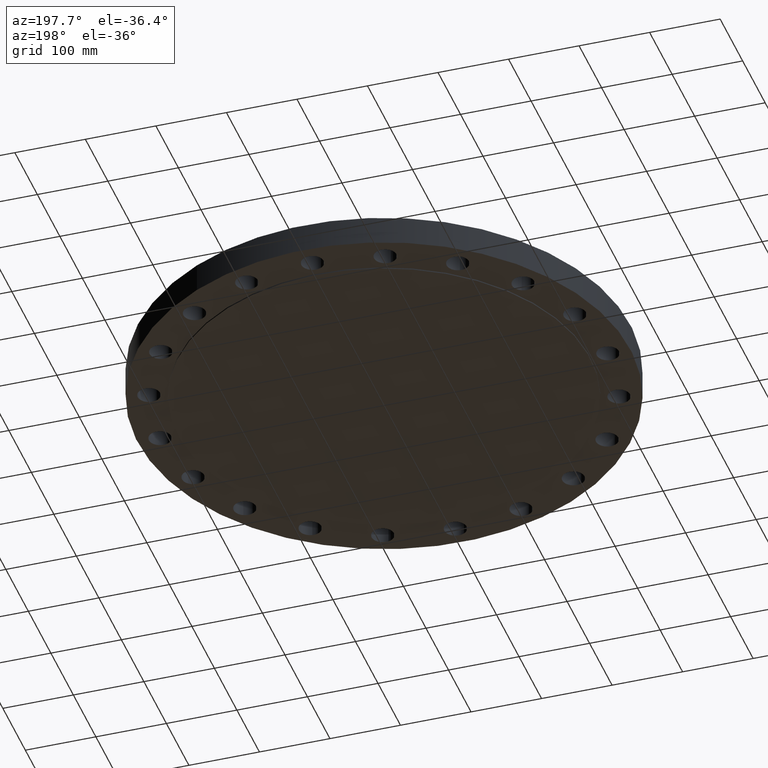
[diagram: clean part render]
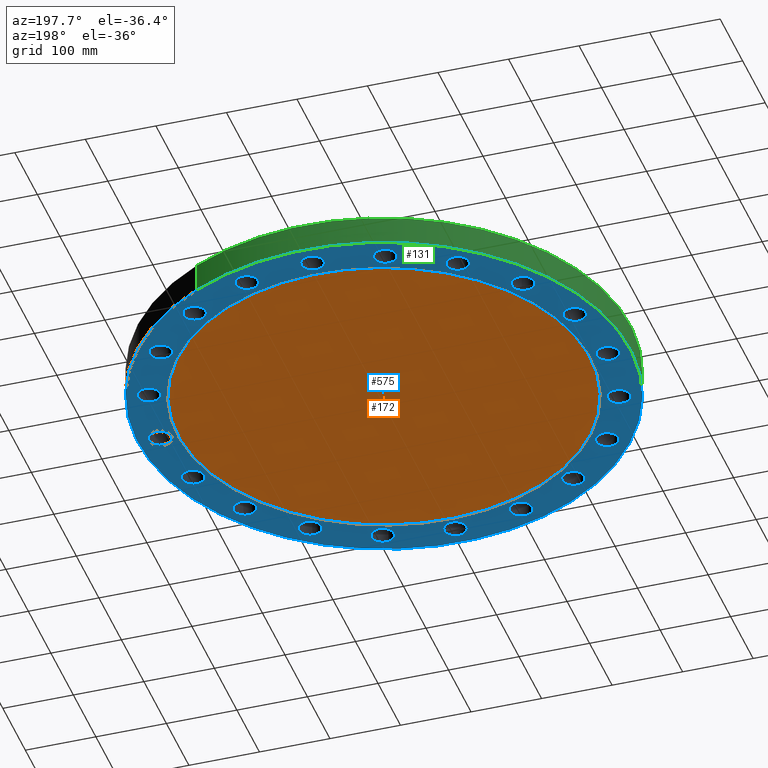
[diagram: same view with three faces highlighted in distinct colors, each labeled with its STEP entity id]
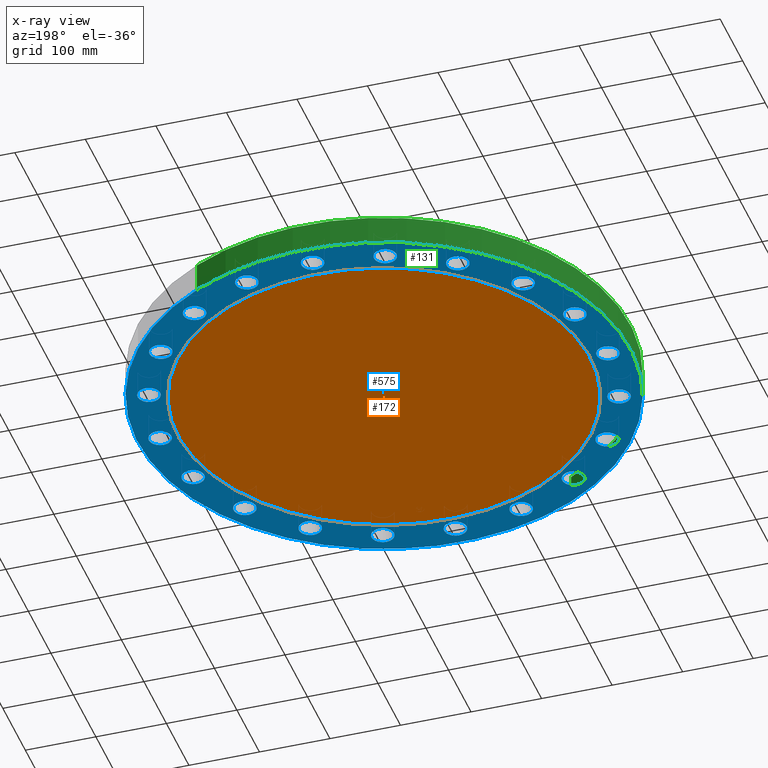
[diagram: x-ray of the same camera — body ghosted, the three highlighted faces saturated]
A machine part, auxiliary view with three faces highlighted in distinct colors.
The next image is the same camera in x-ray (body ghosted, the three faces saturated) — at least one of them is partly hidden behind the body in this view.
Their STEP definitions:

[orange] entity #172 — the highlighted planar face has unit normal (0, 0, -1).
#152=AXIS2_PLACEMENT_3D('Plane Axis2P3D',#149,#150,#151) ;
#156=AXIS2_PLACEMENT_3D('Circle Axis2P3D',#154,#155,$) ;
#165=AXIS2_PLACEMENT_3D('Circle Axis2P3D',#163,#164,$) ;
#149=CARTESIAN_POINT('Axis2P3D Location',(0.,0.,-0.0625000000003)) ;
#154=CARTESIAN_POINT('Axis2P3D Location',(0.,0.,-0.0625000000003)) ;
#158=CARTESIAN_POINT('Vertex',(5.51339369397,10.0921994618,-0.0625000000002)) ;
#160=CARTESIAN_POINT('Vertex',(-5.51339369397,-10.0921994618,-0.0625000000002)) ;
#163=CARTESIAN_POINT('Axis2P3D Location',(0.,0.,-0.0625000000003)) ;
#150=DIRECTION('Axis2P3D Direction',(0.,0.,-0.0393700787402)) ;
#151=DIRECTION('Axis2P3D XDirection',(0.0393700787402,0.,0.)) ;
#155=DIRECTION('Axis2P3D Direction',(0.,0.,-0.0393700787402)) ;
#164=DIRECTION('Axis2P3D Direction',(0.,0.,-0.0393700787402)) ;
#169=ORIENTED_EDGE('',*,*,#162,.T.) ;
#170=ORIENTED_EDGE('',*,*,#167,.T.) ;
#172=ADVANCED_FACE('PartBody',(#171),#153,.T.) ;
#157=CIRCLE('generated circle',#156,11.5) ;
#166=CIRCLE('generated circle',#165,11.5) ;
#162=EDGE_CURVE('',#159,#161,#157,.T.) ;
#167=EDGE_CURVE('',#161,#159,#166,.T.) ;
#168=EDGE_LOOP('',(#169,#170)) ;
#171=FACE_OUTER_BOUND('',#168,.T.) ;
#153=PLANE('',#152) ;
#159=VERTEX_POINT('',#158) ;
#161=VERTEX_POINT('',#160) ;

[blue] entity #575 — the highlighted planar face has unit normal (0, 0, -1).
#51=AXIS2_PLACEMENT_3D('Circle Axis2P3D',#49,#50,$) ;
#77=AXIS2_PLACEMENT_3D('Circle Axis2P3D',#75,#76,$) ;
#99=AXIS2_PLACEMENT_3D('Circle Axis2P3D',#97,#98,$) ;
#134=AXIS2_PLACEMENT_3D('Circle Axis2P3D',#132,#133,$) ;
#187=AXIS2_PLACEMENT_3D('Circle Axis2P3D',#185,#186,$) ;
#206=AXIS2_PLACEMENT_3D('Circle Axis2P3D',#204,#205,$) ;
#219=AXIS2_PLACEMENT_3D('Plane Axis2P3D',#216,#217,#218) ;
#235=AXIS2_PLACEMENT_3D('Circle Axis2P3D',#233,#234,$) ;
#244=AXIS2_PLACEMENT_3D('Circle Axis2P3D',#242,#243,$) ;
#253=AXIS2_PLACEMENT_3D('Circle Axis2P3D',#251,#252,$) ;
#262=AXIS2_PLACEMENT_3D('Circle Axis2P3D',#260,#261,$) ;
#271=AXIS2_PLACEMENT_3D('Circle Axis2P3D',#269,#270,$) ;
#280=AXIS2_PLACEMENT_3D('Circle Axis2P3D',#278,#279,$) ;
#289=AXIS2_PLACEMENT_3D('Circle Axis2P3D',#287,#288,$) ;
#298=AXIS2_PLACEMENT_3D('Circle Axis2P3D',#296,#297,$) ;
#307=AXIS2_PLACEMENT_3D('Circle Axis2P3D',#305,#306,$) ;
#316=AXIS2_PLACEMENT_3D('Circle Axis2P3D',#314,#315,$) ;
#325=AXIS2_PLACEMENT_3D('Circle Axis2P3D',#323,#324,$) ;
#334=AXIS2_PLACEMENT_3D('Circle Axis2P3D',#332,#333,$) ;
#343=AXIS2_PLACEMENT_3D('Circle Axis2P3D',#341,#342,$) ;
#352=AXIS2_PLACEMENT_3D('Circle Axis2P3D',#350,#351,$) ;
#361=AXIS2_PLACEMENT_3D('Circle Axis2P3D',#359,#360,$) ;
#370=AXIS2_PLACEMENT_3D('Circle Axis2P3D',#368,#369,$) ;
#379=AXIS2_PLACEMENT_3D('Circle Axis2P3D',#377,#378,$) ;
#388=AXIS2_PLACEMENT_3D('Circle Axis2P3D',#386,#387,$) ;
#397=AXIS2_PLACEMENT_3D('Circle Axis2P3D',#395,#396,$) ;
#406=AXIS2_PLACEMENT_3D('Circle Axis2P3D',#404,#405,$) ;
#415=AXIS2_PLACEMENT_3D('Circle Axis2P3D',#413,#414,$) ;
#424=AXIS2_PLACEMENT_3D('Circle Axis2P3D',#422,#423,$) ;
#433=AXIS2_PLACEMENT_3D('Circle Axis2P3D',#431,#432,$) ;
#442=AXIS2_PLACEMENT_3D('Circle Axis2P3D',#440,#441,$) ;
#451=AXIS2_PLACEMENT_3D('Circle Axis2P3D',#449,#450,$) ;
#460=AXIS2_PLACEMENT_3D('Circle Axis2P3D',#458,#459,$) ;
#469=AXIS2_PLACEMENT_3D('Circle Axis2P3D',#467,#468,$) ;
#478=AXIS2_PLACEMENT_3D('Circle Axis2P3D',#476,#477,$) ;
#487=AXIS2_PLACEMENT_3D('Circle Axis2P3D',#485,#486,$) ;
#496=AXIS2_PLACEMENT_3D('Circle Axis2P3D',#494,#495,$) ;
#505=AXIS2_PLACEMENT_3D('Circle Axis2P3D',#503,#504,$) ;
#514=AXIS2_PLACEMENT_3D('Circle Axis2P3D',#512,#513,$) ;
#523=AXIS2_PLACEMENT_3D('Circle Axis2P3D',#521,#522,$) ;
#532=AXIS2_PLACEMENT_3D('Circle Axis2P3D',#530,#531,$) ;
#541=AXIS2_PLACEMENT_3D('Circle Axis2P3D',#539,#540,$) ;
#550=AXIS2_PLACEMENT_3D('Circle Axis2P3D',#548,#549,$) ;
#559=AXIS2_PLACEMENT_3D('Circle Axis2P3D',#557,#558,$) ;
#568=AXIS2_PLACEMENT_3D('Circle Axis2P3D',#566,#567,$) ;
#44=CARTESIAN_POINT('Vertex',(11.9515108989,0.299640961629,0.)) ;
#49=CARTESIAN_POINT('Axis2P3D Location',(12.5000000001,0.,0.)) ;
#53=CARTESIAN_POINT('Vertex',(13.0484891012,-0.299640961629,0.)) ;
#75=CARTESIAN_POINT('Axis2P3D Location',(12.5000000001,0.,0.)) ;
#97=CARTESIAN_POINT('Axis2P3D Location',(0.,0.,1.67844740731E-015)) ;
#101=CARTESIAN_POINT('Vertex',(-6.59210115583,-12.066760226,1.67844740731E-015)) ;
#103=CARTESIAN_POINT('Vertex',(6.59210115583,12.066760226,1.67844740731E-015)) ;
#132=CARTESIAN_POINT('Axis2P3D Location',(0.,0.,1.67844740731E-015)) ;
#182=CARTESIAN_POINT('Vertex',(-5.51339369397,-10.0921994618,1.53857679003E-015)) ;
#185=CARTESIAN_POINT('Axis2P3D Location',(0.,0.,1.53857679003E-015)) ;
#189=CARTESIAN_POINT('Vertex',(5.51339369397,10.0921994618,1.53857679003E-015)) ;
#204=CARTESIAN_POINT('Axis2P3D Location',(0.,0.,1.53857679003E-015)) ;
#216=CARTESIAN_POINT('Axis2P3D Location',(0.,11.5,0.)) ;
#233=CARTESIAN_POINT('Axis2P3D Location',(11.8882064537,-3.8627124297,0.)) ;
#237=CARTESIAN_POINT('Vertex',(11.4591564693,-3.4082444871,0.)) ;
#239=CARTESIAN_POINT('Vertex',(12.3172564382,-4.3171803723,0.)) ;
#242=CARTESIAN_POINT('Axis2P3D Location',(11.8882064537,-3.8627124297,0.)) ;
#251=CARTESIAN_POINT('Axis2P3D Location',(10.1127124297,-7.34731565369,0.)) ;
#255=CARTESIAN_POINT('Vertex',(9.84509996387,-6.7825072188,0.)) ;
#257=CARTESIAN_POINT('Vertex',(10.3803248956,-7.91212408857,-1.67844740731E-015)) ;
#260=CARTESIAN_POINT('Axis2P3D Location',(10.1127124297,-7.34731565369,0.)) ;
#269=CARTESIAN_POINT('Axis2P3D Location',(7.34731565369,-10.1127124297,0.)) ;
#273=CARTESIAN_POINT('Vertex',(7.26733647913,-9.49285088741,0.)) ;
#275=CARTESIAN_POINT('Vertex',(7.42729482824,-10.732573972,0.)) ;
#278=CARTESIAN_POINT('Axis2P3D Location',(7.34731565369,-10.1127124297,0.)) ;
#287=CARTESIAN_POINT('Axis2P3D Location',(3.8627124297,-11.8882064537,0.)) ;
#291=CARTESIAN_POINT('Vertex',(3.97819546531,-11.2739681706,0.)) ;
#293=CARTESIAN_POINT('Vertex',(3.74722939409,-12.5024447369,0.)) ;
#296=CARTESIAN_POINT('Axis2P3D Location',(3.8627124297,-11.8882064537,0.)) ;
#305=CARTESIAN_POINT('Axis2P3D Location',(1.46864148139E-015,-12.5000000001,0.)) ;
#309=CARTESIAN_POINT('Vertex',(0.299640961629,-11.9515108989,0.)) ;
#311=CARTESIAN_POINT('Vertex',(-0.299640961629,-13.0484891012,0.)) ;
#314=CARTESIAN_POINT('Axis2P3D Location',(1.39870617276E-015,-12.5000000001,0.)) ;
#323=CARTESIAN_POINT('Axis2P3D Location',(-3.8627124297,-11.8882064537,0.)) ;
#327=CARTESIAN_POINT('Vertex',(-3.4082444871,-11.4591564693,0.)) ;
#329=CARTESIAN_POINT('Vertex',(-4.3171803723,-12.3172564382,0.)) ;
#332=CARTESIAN_POINT('Axis2P3D Location',(-3.8627124297,-11.8882064537,0.)) ;
#341=CARTESIAN_POINT('Axis2P3D Location',(-7.34731565369,-10.1127124297,0.)) ;
#345=CARTESIAN_POINT('Vertex',(-6.7825072188,-9.84509996387,0.)) ;
#347=CARTESIAN_POINT('Vertex',(-7.91212408857,-10.3803248956,0.)) ;
#350=CARTESIAN_POINT('Axis2P3D Location',(-7.34731565369,-10.1127124297,0.)) ;
#359=CARTESIAN_POINT('Axis2P3D Location',(-10.1127124297,-7.34731565369,0.)) ;
#363=CARTESIAN_POINT('Vertex',(-9.49285088741,-7.26733647913,0.)) ;
#365=CARTESIAN_POINT('Vertex',(-10.732573972,-7.42729482824,0.)) ;
#368=CARTESIAN_POINT('Axis2P3D Location',(-10.1127124297,-7.34731565369,0.)) ;
#377=CARTESIAN_POINT('Axis2P3D Location',(-11.8882064537,-3.8627124297,0.)) ;
#381=CARTESIAN_POINT('Vertex',(-11.2739681706,-3.97819546531,0.)) ;
#383=CARTESIAN_POINT('Vertex',(-12.5024447369,-3.74722939409,0.)) ;
#386=CARTESIAN_POINT('Axis2P3D Location',(-11.8882064537,-3.8627124297,0.)) ;
#395=CARTESIAN_POINT('Axis2P3D Location',(-12.5000000001,-6.71378962923E-015,0.)) ;
#399=CARTESIAN_POINT('Vertex',(-11.9515108989,-0.299640961629,0.)) ;
#401=CARTESIAN_POINT('Vertex',(-13.0484891012,0.299640961629,0.)) ;
#404=CARTESIAN_POINT('Axis2P3D Location',(-12.5000000001,-6.71378962923E-015,0.)) ;
#413=CARTESIAN_POINT('Axis2P3D Location',(-11.8882064537,3.8627124297,0.)) ;
#417=CARTESIAN_POINT('Vertex',(-11.4591564693,3.4082444871,0.)) ;
#419=CARTESIAN_POINT('Vertex',(-12.3172564382,4.3171803723,0.)) ;
#422=CARTESIAN_POINT('Axis2P3D Location',(-11.8882064537,3.8627124297,0.)) ;
#431=CARTESIAN_POINT('Axis2P3D Location',(-10.1127124297,7.34731565369,0.)) ;
#435=CARTESIAN_POINT('Vertex',(-9.84509996387,6.7825072188,0.)) ;
#437=CARTESIAN_POINT('Vertex',(-10.3803248956,7.91212408857,-1.67844740731E-015)) ;
#440=CARTESIAN_POINT('Axis2P3D Location',(-10.1127124297,7.34731565369,0.)) ;
#449=CARTESIAN_POINT('Axis2P3D Location',(-7.34731565369,10.1127124297,0.)) ;
#453=CARTESIAN_POINT('Vertex',(-7.26733647913,9.49285088741,0.)) ;
#455=CARTESIAN_POINT('Vertex',(-7.42729482824,10.732573972,0.)) ;
#458=CARTESIAN_POINT('Axis2P3D Location',(-7.34731565369,10.1127124297,0.)) ;
#467=CARTESIAN_POINT('Axis2P3D Location',(-3.8627124297,11.8882064537,0.)) ;
#471=CARTESIAN_POINT('Vertex',(-3.97819546531,11.2739681706,0.)) ;
#473=CARTESIAN_POINT('Vertex',(-3.74722939409,12.5024447369,-1.67844740731E-015)) ;
#476=CARTESIAN_POINT('Axis2P3D Location',(-3.8627124297,11.8882064537,0.)) ;
#485=CARTESIAN_POINT('Axis2P3D Location',(-1.43367382708E-014,12.5000000001,0.)) ;
#489=CARTESIAN_POINT('Vertex',(-0.299640961629,11.9515108989,0.)) ;
#491=CARTESIAN_POINT('Vertex',(0.299640961629,13.0484891012,0.)) ;
#494=CARTESIAN_POINT('Axis2P3D Location',(-1.25184202462E-014,12.5000000001,0.)) ;
#503=CARTESIAN_POINT('Axis2P3D Location',(3.8627124297,11.8882064537,0.)) ;
#507=CARTESIAN_POINT('Vertex',(3.4082444871,11.4591564693,0.)) ;
#509=CARTESIAN_POINT('Vertex',(4.3171803723,12.3172564382,-1.67844740731E-015)) ;
#512=CARTESIAN_POINT('Axis2P3D Location',(3.8627124297,11.8882064537,0.)) ;
#521=CARTESIAN_POINT('Axis2P3D Location',(7.34731565369,10.1127124297,0.)) ;
#525=CARTESIAN_POINT('Vertex',(6.7825072188,9.84509996387,0.)) ;
#527=CARTESIAN_POINT('Vertex',(7.91212408857,10.3803248956,0.)) ;
#530=CARTESIAN_POINT('Axis2P3D Location',(7.34731565369,10.1127124297,0.)) ;
#539=CARTESIAN_POINT('Axis2P3D Location',(10.1127124297,7.34731565369,0.)) ;
#543=CARTESIAN_POINT('Vertex',(9.49285088741,7.26733647913,0.)) ;
#545=CARTESIAN_POINT('Vertex',(10.732573972,7.42729482824,0.)) ;
#548=CARTESIAN_POINT('Axis2P3D Location',(10.1127124297,7.34731565369,0.)) ;
#557=CARTESIAN_POINT('Axis2P3D Location',(11.8882064537,3.8627124297,0.)) ;
#561=CARTESIAN_POINT('Vertex',(11.2739681706,3.97819546531,0.)) ;
#563=CARTESIAN_POINT('Vertex',(12.5024447369,3.74722939409,-1.67844740731E-015)) ;
#566=CARTESIAN_POINT('Axis2P3D Location',(11.8882064537,3.8627124297,0.)) ;
#50=DIRECTION('Axis2P3D Direction',(0.,-0.,-0.0393700787402)) ;
#76=DIRECTION('Axis2P3D Direction',(0.,-0.,-0.0393700787402)) ;
#98=DIRECTION('Axis2P3D Direction',(0.,0.,-0.0393700787402)) ;
#133=DIRECTION('Axis2P3D Direction',(0.,0.,-0.0393700787402)) ;
#186=DIRECTION('Axis2P3D Direction',(0.,0.,-0.0393700787402)) ;
#205=DIRECTION('Axis2P3D Direction',(0.,0.,-0.0393700787402)) ;
#217=DIRECTION('Axis2P3D Direction',(0.,0.,-0.0393700787402)) ;
#218=DIRECTION('Axis2P3D XDirection',(0.0393700787402,0.,0.)) ;
#234=DIRECTION('Axis2P3D Direction',(0.,0.,-0.0393700787402)) ;
#243=DIRECTION('Axis2P3D Direction',(0.,0.,-0.0393700787402)) ;
#252=DIRECTION('Axis2P3D Direction',(0.,0.,-0.0393700787402)) ;
#261=DIRECTION('Axis2P3D Direction',(0.,0.,-0.0393700787402)) ;
#270=DIRECTION('Axis2P3D Direction',(0.,0.,-0.0393700787402)) ;
#279=DIRECTION('Axis2P3D Direction',(0.,0.,-0.0393700787402)) ;
#288=DIRECTION('Axis2P3D Direction',(0.,0.,-0.0393700787402)) ;
#297=DIRECTION('Axis2P3D Direction',(0.,0.,-0.0393700787402)) ;
#306=DIRECTION('Axis2P3D Direction',(0.,0.,-0.0393700787402)) ;
#315=DIRECTION('Axis2P3D Direction',(0.,0.,-0.0393700787402)) ;
#324=DIRECTION('Axis2P3D Direction',(0.,0.,-0.0393700787402)) ;
#333=DIRECTION('Axis2P3D Direction',(0.,0.,-0.0393700787402)) ;
#342=DIRECTION('Axis2P3D Direction',(0.,0.,-0.0393700787402)) ;
#351=DIRECTION('Axis2P3D Direction',(0.,0.,-0.0393700787402)) ;
#360=DIRECTION('Axis2P3D Direction',(0.,0.,-0.0393700787402)) ;
#369=DIRECTION('Axis2P3D Direction',(0.,0.,-0.0393700787402)) ;
#378=DIRECTION('Axis2P3D Direction',(0.,0.,-0.0393700787402)) ;
#387=DIRECTION('Axis2P3D Direction',(0.,0.,-0.0393700787402)) ;
#396=DIRECTION('Axis2P3D Direction',(0.,0.,-0.0393700787402)) ;
#405=DIRECTION('Axis2P3D Direction',(0.,0.,-0.0393700787402)) ;
#414=DIRECTION('Axis2P3D Direction',(0.,0.,-0.0393700787402)) ;
#423=DIRECTION('Axis2P3D Direction',(0.,0.,-0.0393700787402)) ;
#432=DIRECTION('Axis2P3D Direction',(0.,0.,-0.0393700787402)) ;
#441=DIRECTION('Axis2P3D Direction',(0.,0.,-0.0393700787402)) ;
#450=DIRECTION('Axis2P3D Direction',(0.,0.,-0.0393700787402)) ;
#459=DIRECTION('Axis2P3D Direction',(0.,0.,-0.0393700787402)) ;
#468=DIRECTION('Axis2P3D Direction',(0.,0.,-0.0393700787402)) ;
#477=DIRECTION('Axis2P3D Direction',(0.,0.,-0.0393700787402)) ;
#486=DIRECTION('Axis2P3D Direction',(0.,0.,-0.0393700787402)) ;
#495=DIRECTION('Axis2P3D Direction',(0.,0.,-0.0393700787402)) ;
#504=DIRECTION('Axis2P3D Direction',(0.,0.,-0.0393700787402)) ;
#513=DIRECTION('Axis2P3D Direction',(0.,0.,-0.0393700787402)) ;
#522=DIRECTION('Axis2P3D Direction',(0.,0.,-0.0393700787402)) ;
#531=DIRECTION('Axis2P3D Direction',(0.,0.,-0.0393700787402)) ;
#540=DIRECTION('Axis2P3D Direction',(0.,0.,-0.0393700787402)) ;
#549=DIRECTION('Axis2P3D Direction',(0.,0.,-0.0393700787402)) ;
#558=DIRECTION('Axis2P3D Direction',(0.,0.,-0.0393700787402)) ;
#567=DIRECTION('Axis2P3D Direction',(0.,0.,-0.0393700787402)) ;
#222=ORIENTED_EDGE('',*,*,#105,.T.) ;
#223=ORIENTED_EDGE('',*,*,#136,.T.) ;
#226=ORIENTED_EDGE('',*,*,#79,.F.) ;
#227=ORIENTED_EDGE('',*,*,#55,.F.) ;
#230=ORIENTED_EDGE('',*,*,#208,.F.) ;
#231=ORIENTED_EDGE('',*,*,#191,.F.) ;
#248=ORIENTED_EDGE('',*,*,#241,.F.) ;
#249=ORIENTED_EDGE('',*,*,#246,.F.) ;
#266=ORIENTED_EDGE('',*,*,#259,.F.) ;
#267=ORIENTED_EDGE('',*,*,#264,.F.) ;
#284=ORIENTED_EDGE('',*,*,#277,.F.) ;
#285=ORIENTED_EDGE('',*,*,#282,.F.) ;
#302=ORIENTED_EDGE('',*,*,#295,.F.) ;
#303=ORIENTED_EDGE('',*,*,#300,.F.) ;
#320=ORIENTED_EDGE('',*,*,#313,.F.) ;
#321=ORIENTED_EDGE('',*,*,#318,.F.) ;
#338=ORIENTED_EDGE('',*,*,#331,.F.) ;
#339=ORIENTED_EDGE('',*,*,#336,.F.) ;
#356=ORIENTED_EDGE('',*,*,#349,.F.) ;
#357=ORIENTED_EDGE('',*,*,#354,.F.) ;
#374=ORIENTED_EDGE('',*,*,#367,.F.) ;
#375=ORIENTED_EDGE('',*,*,#372,.F.) ;
#392=ORIENTED_EDGE('',*,*,#385,.F.) ;
#393=ORIENTED_EDGE('',*,*,#390,.F.) ;
#410=ORIENTED_EDGE('',*,*,#403,.F.) ;
#411=ORIENTED_EDGE('',*,*,#408,.F.) ;
#428=ORIENTED_EDGE('',*,*,#421,.F.) ;
#429=ORIENTED_EDGE('',*,*,#426,.F.) ;
#446=ORIENTED_EDGE('',*,*,#439,.F.) ;
#447=ORIENTED_EDGE('',*,*,#444,.F.) ;
#464=ORIENTED_EDGE('',*,*,#457,.F.) ;
#465=ORIENTED_EDGE('',*,*,#462,.F.) ;
#482=ORIENTED_EDGE('',*,*,#475,.F.) ;
#483=ORIENTED_EDGE('',*,*,#480,.F.) ;
#500=ORIENTED_EDGE('',*,*,#493,.F.) ;
#501=ORIENTED_EDGE('',*,*,#498,.F.) ;
#518=ORIENTED_EDGE('',*,*,#511,.F.) ;
#519=ORIENTED_EDGE('',*,*,#516,.F.) ;
#536=ORIENTED_EDGE('',*,*,#529,.F.) ;
#537=ORIENTED_EDGE('',*,*,#534,.F.) ;
#554=ORIENTED_EDGE('',*,*,#547,.F.) ;
#555=ORIENTED_EDGE('',*,*,#552,.F.) ;
#572=ORIENTED_EDGE('',*,*,#565,.F.) ;
#573=ORIENTED_EDGE('',*,*,#570,.F.) ;
#228=FACE_BOUND('',#225,.T.) ;
#232=FACE_BOUND('',#229,.T.) ;
#250=FACE_BOUND('',#247,.T.) ;
#268=FACE_BOUND('',#265,.T.) ;
#286=FACE_BOUND('',#283,.T.) ;
#304=FACE_BOUND('',#301,.T.) ;
#322=FACE_BOUND('',#319,.T.) ;
#340=FACE_BOUND('',#337,.T.) ;
#358=FACE_BOUND('',#355,.T.) ;
#376=FACE_BOUND('',#373,.T.) ;
#394=FACE_BOUND('',#391,.T.) ;
#412=FACE_BOUND('',#409,.T.) ;
#430=FACE_BOUND('',#427,.T.) ;
#448=FACE_BOUND('',#445,.T.) ;
#466=FACE_BOUND('',#463,.T.) ;
#484=FACE_BOUND('',#481,.T.) ;
#502=FACE_BOUND('',#499,.T.) ;
#520=FACE_BOUND('',#517,.T.) ;
#538=FACE_BOUND('',#535,.T.) ;
#556=FACE_BOUND('',#553,.T.) ;
#574=FACE_BOUND('',#571,.T.) ;
#575=ADVANCED_FACE('PartBody',(#224,#228,#232,#250,#268,#286,#304,#322,#340,#358,#376,#394,#412,#430,#448,#466,#484,#502,#520,#538,#556,#574),#220,.T.) ;
#52=CIRCLE('generated circle',#51,0.625000000002) ;
#78=CIRCLE('generated circle',#77,0.625000000002) ;
#100=CIRCLE('generated circle',#99,13.7500000001) ;
#135=CIRCLE('generated circle',#134,13.7500000001) ;
#188=CIRCLE('generated circle',#187,11.5) ;
#207=CIRCLE('generated circle',#206,11.5) ;
#236=CIRCLE('generated circle',#235,0.625000000002) ;
#245=CIRCLE('generated circle',#244,0.625000000002) ;
#254=CIRCLE('generated circle',#253,0.625000000003) ;
#263=CIRCLE('generated circle',#262,0.625000000003) ;
#272=CIRCLE('generated circle',#271,0.625000000003) ;
#281=CIRCLE('generated circle',#280,0.625000000003) ;
#290=CIRCLE('generated circle',#289,0.625000000002) ;
#299=CIRCLE('generated circle',#298,0.625000000002) ;
#308=CIRCLE('generated circle',#307,0.625000000002) ;
#317=CIRCLE('generated circle',#316,0.625000000002) ;
#326=CIRCLE('generated circle',#325,0.625000000002) ;
#335=CIRCLE('generated circle',#334,0.625000000002) ;
#344=CIRCLE('generated circle',#343,0.625000000003) ;
#353=CIRCLE('generated circle',#352,0.625000000003) ;
#362=CIRCLE('generated circle',#361,0.625000000003) ;
#371=CIRCLE('generated circle',#370,0.625000000003) ;
#380=CIRCLE('generated circle',#379,0.625000000002) ;
#389=CIRCLE('generated circle',#388,0.625000000002) ;
#398=CIRCLE('generated circle',#397,0.625000000003) ;
#407=CIRCLE('generated circle',#406,0.625000000003) ;
#416=CIRCLE('generated circle',#415,0.625000000002) ;
#425=CIRCLE('generated circle',#424,0.625000000002) ;
#434=CIRCLE('generated circle',#433,0.625000000003) ;
#443=CIRCLE('generated circle',#442,0.625000000003) ;
#452=CIRCLE('generated circle',#451,0.625000000003) ;
#461=CIRCLE('generated circle',#460,0.625000000003) ;
#470=CIRCLE('generated circle',#469,0.625000000003) ;
#479=CIRCLE('generated circle',#478,0.625000000003) ;
#488=CIRCLE('generated circle',#487,0.625000000002) ;
#497=CIRCLE('generated circle',#496,0.625000000002) ;
#506=CIRCLE('generated circle',#505,0.625000000002) ;
#515=CIRCLE('generated circle',#514,0.625000000002) ;
#524=CIRCLE('generated circle',#523,0.625000000003) ;
#533=CIRCLE('generated circle',#532,0.625000000003) ;
#542=CIRCLE('generated circle',#541,0.625000000003) ;
#551=CIRCLE('generated circle',#550,0.625000000003) ;
#560=CIRCLE('generated circle',#559,0.625000000003) ;
#569=CIRCLE('generated circle',#568,0.625000000003) ;
#55=EDGE_CURVE('',#45,#54,#52,.T.) ;
#79=EDGE_CURVE('',#54,#45,#78,.T.) ;
#105=EDGE_CURVE('',#102,#104,#100,.T.) ;
#136=EDGE_CURVE('',#104,#102,#135,.T.) ;
#191=EDGE_CURVE('',#183,#190,#188,.T.) ;
#208=EDGE_CURVE('',#190,#183,#207,.T.) ;
#241=EDGE_CURVE('',#238,#240,#236,.T.) ;
#246=EDGE_CURVE('',#240,#238,#245,.T.) ;
#259=EDGE_CURVE('',#256,#258,#254,.T.) ;
#264=EDGE_CURVE('',#258,#256,#263,.T.) ;
#277=EDGE_CURVE('',#274,#276,#272,.T.) ;
#282=EDGE_CURVE('',#276,#274,#281,.T.) ;
#295=EDGE_CURVE('',#292,#294,#290,.T.) ;
#300=EDGE_CURVE('',#294,#292,#299,.T.) ;
#313=EDGE_CURVE('',#310,#312,#308,.T.) ;
#318=EDGE_CURVE('',#312,#310,#317,.T.) ;
#331=EDGE_CURVE('',#328,#330,#326,.T.) ;
#336=EDGE_CURVE('',#330,#328,#335,.T.) ;
#349=EDGE_CURVE('',#346,#348,#344,.T.) ;
#354=EDGE_CURVE('',#348,#346,#353,.T.) ;
#367=EDGE_CURVE('',#364,#366,#362,.T.) ;
#372=EDGE_CURVE('',#366,#364,#371,.T.) ;
#385=EDGE_CURVE('',#382,#384,#380,.T.) ;
#390=EDGE_CURVE('',#384,#382,#389,.T.) ;
#403=EDGE_CURVE('',#400,#402,#398,.T.) ;
#408=EDGE_CURVE('',#402,#400,#407,.T.) ;
#421=EDGE_CURVE('',#418,#420,#416,.T.) ;
#426=EDGE_CURVE('',#420,#418,#425,.T.) ;
#439=EDGE_CURVE('',#436,#438,#434,.T.) ;
#444=EDGE_CURVE('',#438,#436,#443,.T.) ;
#457=EDGE_CURVE('',#454,#456,#452,.T.) ;
#462=EDGE_CURVE('',#456,#454,#461,.T.) ;
#475=EDGE_CURVE('',#472,#474,#470,.T.) ;
#480=EDGE_CURVE('',#474,#472,#479,.T.) ;
#493=EDGE_CURVE('',#490,#492,#488,.T.) ;
#498=EDGE_CURVE('',#492,#490,#497,.T.) ;
#511=EDGE_CURVE('',#508,#510,#506,.T.) ;
#516=EDGE_CURVE('',#510,#508,#515,.T.) ;
#529=EDGE_CURVE('',#526,#528,#524,.T.) ;
#534=EDGE_CURVE('',#528,#526,#533,.T.) ;
#547=EDGE_CURVE('',#544,#546,#542,.T.) ;
#552=EDGE_CURVE('',#546,#544,#551,.T.) ;
#565=EDGE_CURVE('',#562,#564,#560,.T.) ;
#570=EDGE_CURVE('',#564,#562,#569,.T.) ;
#221=EDGE_LOOP('',(#222,#223)) ;
#225=EDGE_LOOP('',(#226,#227)) ;
#229=EDGE_LOOP('',(#230,#231)) ;
#247=EDGE_LOOP('',(#248,#249)) ;
#265=EDGE_LOOP('',(#266,#267)) ;
#283=EDGE_LOOP('',(#284,#285)) ;
#301=EDGE_LOOP('',(#302,#303)) ;
#319=EDGE_LOOP('',(#320,#321)) ;
#337=EDGE_LOOP('',(#338,#339)) ;
#355=EDGE_LOOP('',(#356,#357)) ;
#373=EDGE_LOOP('',(#374,#375)) ;
#391=EDGE_LOOP('',(#392,#393)) ;
#409=EDGE_LOOP('',(#410,#411)) ;
#427=EDGE_LOOP('',(#428,#429)) ;
#445=EDGE_LOOP('',(#446,#447)) ;
#463=EDGE_LOOP('',(#464,#465)) ;
#481=EDGE_LOOP('',(#482,#483)) ;
#499=EDGE_LOOP('',(#500,#501)) ;
#517=EDGE_LOOP('',(#518,#519)) ;
#535=EDGE_LOOP('',(#536,#537)) ;
#553=EDGE_LOOP('',(#554,#555)) ;
#571=EDGE_LOOP('',(#572,#573)) ;
#224=FACE_OUTER_BOUND('',#221,.T.) ;
#220=PLANE('',#219) ;
#45=VERTEX_POINT('',#44) ;
#54=VERTEX_POINT('',#53) ;
#102=VERTEX_POINT('',#101) ;
#104=VERTEX_POINT('',#103) ;
#183=VERTEX_POINT('',#182) ;
#190=VERTEX_POINT('',#189) ;
#238=VERTEX_POINT('',#237) ;
#240=VERTEX_POINT('',#239) ;
#256=VERTEX_POINT('',#255) ;
#258=VERTEX_POINT('',#257) ;
#274=VERTEX_POINT('',#273) ;
#276=VERTEX_POINT('',#275) ;
#292=VERTEX_POINT('',#291) ;
#294=VERTEX_POINT('',#293) ;
#310=VERTEX_POINT('',#309) ;
#312=VERTEX_POINT('',#311) ;
#328=VERTEX_POINT('',#327) ;
#330=VERTEX_POINT('',#329) ;
#346=VERTEX_POINT('',#345) ;
#348=VERTEX_POINT('',#347) ;
#364=VERTEX_POINT('',#363) ;
#366=VERTEX_POINT('',#365) ;
#382=VERTEX_POINT('',#381) ;
#384=VERTEX_POINT('',#383) ;
#400=VERTEX_POINT('',#399) ;
#402=VERTEX_POINT('',#401) ;
#418=VERTEX_POINT('',#417) ;
#420=VERTEX_POINT('',#419) ;
#436=VERTEX_POINT('',#435) ;
#438=VERTEX_POINT('',#437) ;
#454=VERTEX_POINT('',#453) ;
#456=VERTEX_POINT('',#455) ;
#472=VERTEX_POINT('',#471) ;
#474=VERTEX_POINT('',#473) ;
#490=VERTEX_POINT('',#489) ;
#492=VERTEX_POINT('',#491) ;
#508=VERTEX_POINT('',#507) ;
#510=VERTEX_POINT('',#509) ;
#526=VERTEX_POINT('',#525) ;
#528=VERTEX_POINT('',#527) ;
#544=VERTEX_POINT('',#543) ;
#546=VERTEX_POINT('',#545) ;
#562=VERTEX_POINT('',#561) ;
#564=VERTEX_POINT('',#563) ;

[green] entity #131 — the highlighted cylindrical surface (partial cylindrical patch) has radius 349.25 mm, axis along (0, 0, -1).
#95=AXIS2_PLACEMENT_3D('Cylinder Axis2P3D',#92,#93,#94) ;
#99=AXIS2_PLACEMENT_3D('Circle Axis2P3D',#97,#98,$) ;
#115=AXIS2_PLACEMENT_3D('Circle Axis2P3D',#113,#114,$) ;
#92=CARTESIAN_POINT('Axis2P3D Location',(0.,0.,0.778750000003)) ;
#97=CARTESIAN_POINT('Axis2P3D Location',(0.,0.,1.67844740731E-015)) ;
#101=CARTESIAN_POINT('Vertex',(-6.59210115583,-12.066760226,1.67844740731E-015)) ;
#103=CARTESIAN_POINT('Vertex',(6.59210115583,12.066760226,1.67844740731E-015)) ;
#106=CARTESIAN_POINT('Line Origine',(-6.59210115583,-12.066760226,0.810000000003)) ;
#110=CARTESIAN_POINT('Vertex',(-6.59210115583,-12.066760226,1.62000000001)) ;
#113=CARTESIAN_POINT('Axis2P3D Location',(0.,0.,1.62000000001)) ;
#117=CARTESIAN_POINT('Vertex',(6.59210115583,12.066760226,1.62000000001)) ;
#120=CARTESIAN_POINT('Line Origine',(6.59210115583,12.066760226,0.810000000003)) ;
#93=DIRECTION('Axis2P3D Direction',(0.,0.,-0.0393700787402)) ;
#94=DIRECTION('Axis2P3D XDirection',(0.0188750212049,0.0345504945626,0.)) ;
#98=DIRECTION('Axis2P3D Direction',(0.,0.,-0.0393700787402)) ;
#107=DIRECTION('Vector Direction',(0.,0.,-0.0393700787402)) ;
#114=DIRECTION('Axis2P3D Direction',(0.,0.,-0.0393700787402)) ;
#121=DIRECTION('Vector Direction',(0.,0.,-0.0393700787402)) ;
#108=VECTOR('Line Direction',#107,0.0393700787402) ;
#122=VECTOR('Line Direction',#121,0.0393700787402) ;
#126=ORIENTED_EDGE('',*,*,#105,.F.) ;
#127=ORIENTED_EDGE('',*,*,#112,.T.) ;
#128=ORIENTED_EDGE('',*,*,#119,.T.) ;
#129=ORIENTED_EDGE('',*,*,#124,.F.) ;
#131=ADVANCED_FACE('PartBody',(#130),#96,.T.) ;
#100=CIRCLE('generated circle',#99,13.7500000001) ;
#116=CIRCLE('generated circle',#115,13.7500000001) ;
#96=CYLINDRICAL_SURFACE('generated cylinder',#95,13.7500000001) ;
#105=EDGE_CURVE('',#102,#104,#100,.T.) ;
#112=EDGE_CURVE('',#102,#111,#109,.F.) ;
#119=EDGE_CURVE('',#111,#118,#116,.T.) ;
#124=EDGE_CURVE('',#104,#118,#123,.F.) ;
#125=EDGE_LOOP('',(#126,#127,#128,#129)) ;
#130=FACE_OUTER_BOUND('',#125,.T.) ;
#109=LINE('Line',#106,#108) ;
#123=LINE('Line',#120,#122) ;
#102=VERTEX_POINT('',#101) ;
#104=VERTEX_POINT('',#103) ;
#111=VERTEX_POINT('',#110) ;
#118=VERTEX_POINT('',#117) ;